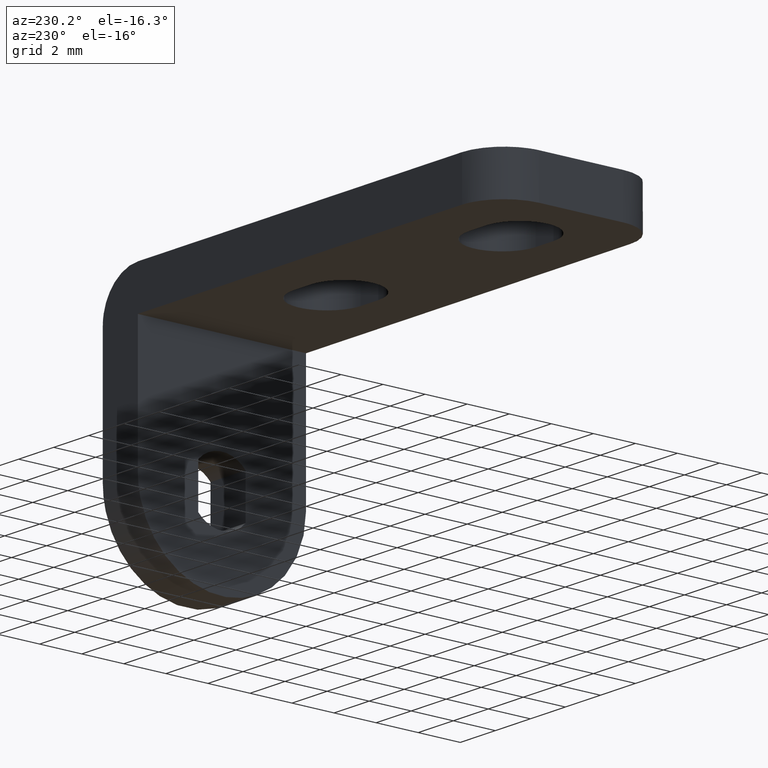
[diagram: clean part render]
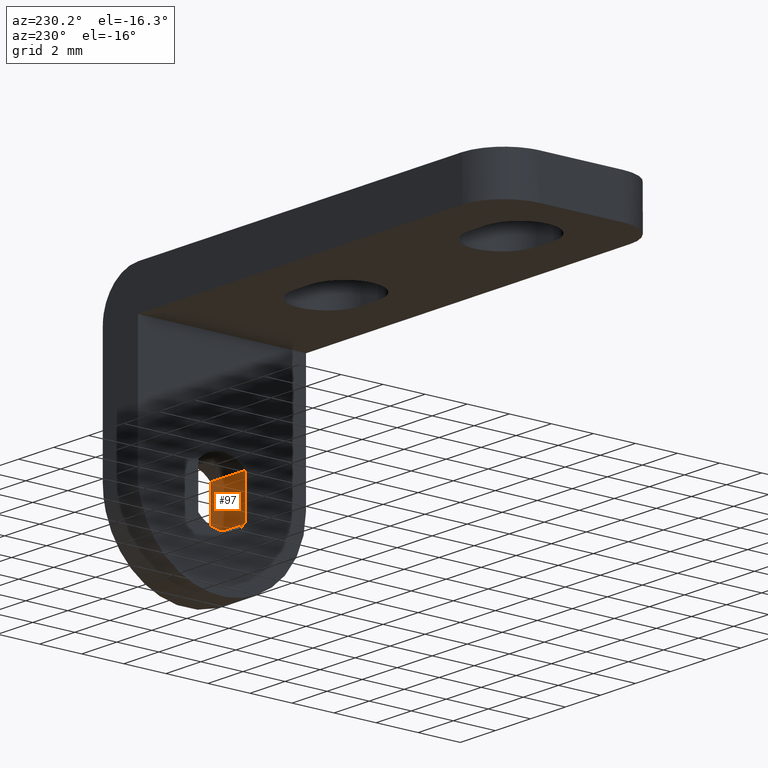
[diagram: same view with one face highlighted and labeled with its STEP entity id]
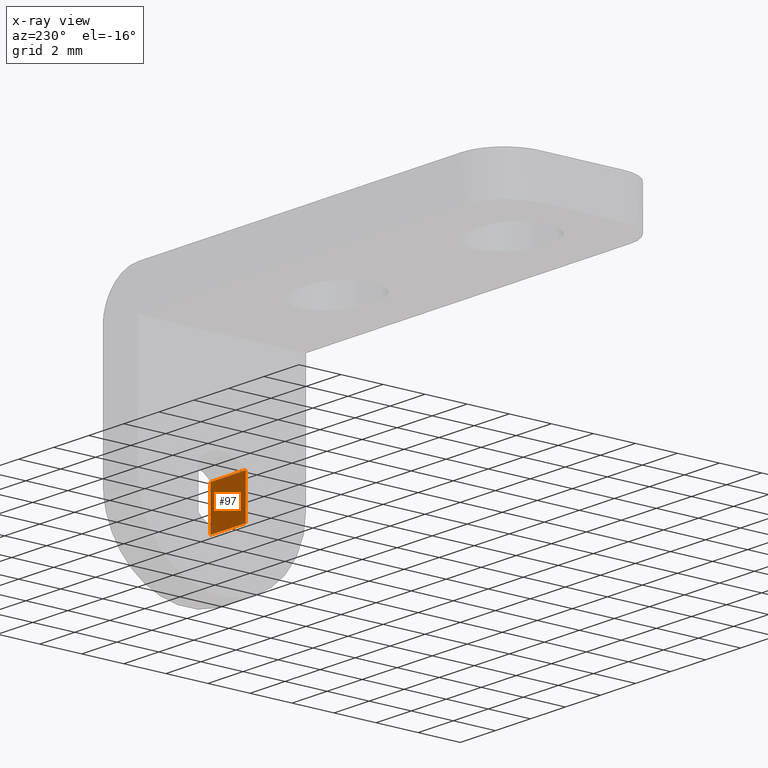
[diagram: x-ray of the same camera — body ghosted, the highlighted face saturated]
A machine part, auxiliary view. The second image highlights one B-rep face of the part: STEP entity #97.
The next image is the same camera in x-ray: the body ghosted, the highlighted face saturated — about 1% of this face is hidden behind the body in this view.
In plain terms, the highlighted face is a freeform B-spline surface patch.
Its self-contained STEP definition (entity closure, byte-faithful):
#19=CARTESIAN_POINT('',(-2.0,-1.125000000000000,-1.007211497154396));
#20=VERTEX_POINT('',#19);
#38=CARTESIAN_POINT('',(0.0,-1.125000000000000,-1.007211497154396));
#39=VERTEX_POINT('',#38);
#40=CARTESIAN_POINT('',(0.0,-1.125000000000000,-1.007211497154396));
#41=CARTESIAN_POINT('',(-2.0,-1.125000000000000,-1.007211497154396));
#42=QUASI_UNIFORM_CURVE('',1,(#40,#41),.UNSPECIFIED.,.F.,.U.);
#43=EDGE_CURVE('',#39,#20,#42,.T.);
#70=CARTESIAN_POINT('',(-2.099899996123611,-1.125000000000000,-1.107831921815778));
#71=CARTESIAN_POINT('',(-2.099899996123611,-1.125000000000000,1.107831975846813));
#72=CARTESIAN_POINT('',(0.099900049767792,-1.125000000000000,-1.107831921815778));
#73=CARTESIAN_POINT('',(0.099900049767792,-1.125000000000000,1.107831975846813));
#74=B_SPLINE_SURFACE_WITH_KNOTS('',1,1,((#70,#72),(#71,#73)),.UNSPECIFIED.,.F.,.F.,.U.,(2,2),(2,2),(0.0,2.215663897662591),(0.0,2.199800045891403),.UNSPECIFIED.);
#75=CARTESIAN_POINT('',(-2.0,-1.125000000000000,1.007211497154396));
#76=VERTEX_POINT('',#75);
#77=CARTESIAN_POINT('',(-2.0,-1.125000000000000,1.007211497154396));
#78=CARTESIAN_POINT('',(-2.0,-1.125000000000000,-1.007211497154396));
#79=QUASI_UNIFORM_CURVE('',1,(#77,#78),.UNSPECIFIED.,.F.,.U.);
#80=EDGE_CURVE('',#76,#20,#79,.T.);
#81=ORIENTED_EDGE('',*,*,#80,.F.);
#82=CARTESIAN_POINT('',(0.0,-1.125000000000000,1.007211497154396));
#83=VERTEX_POINT('',#82);
#84=CARTESIAN_POINT('',(0.0,-1.125000000000000,1.007211497154396));
#85=CARTESIAN_POINT('',(-2.0,-1.125000000000000,1.007211497154396));
#86=QUASI_UNIFORM_CURVE('',1,(#84,#85),.UNSPECIFIED.,.F.,.U.);
#87=EDGE_CURVE('',#83,#76,#86,.T.);
#88=ORIENTED_EDGE('',*,*,#87,.F.);
#89=CARTESIAN_POINT('',(0.0,-1.125000000000000,1.007211497154396));
#90=CARTESIAN_POINT('',(0.0,-1.125000000000000,-1.007211497154396));
#91=QUASI_UNIFORM_CURVE('',1,(#89,#90),.UNSPECIFIED.,.F.,.U.);
#92=EDGE_CURVE('',#83,#39,#91,.T.);
#93=ORIENTED_EDGE('',*,*,#92,.T.);
#94=ORIENTED_EDGE('',*,*,#43,.T.);
#95=EDGE_LOOP('',(#81,#88,#93,#94));
#96=FACE_OUTER_BOUND('',#95,.T.);
#97=ADVANCED_FACE('',(#96),#74,.T.);